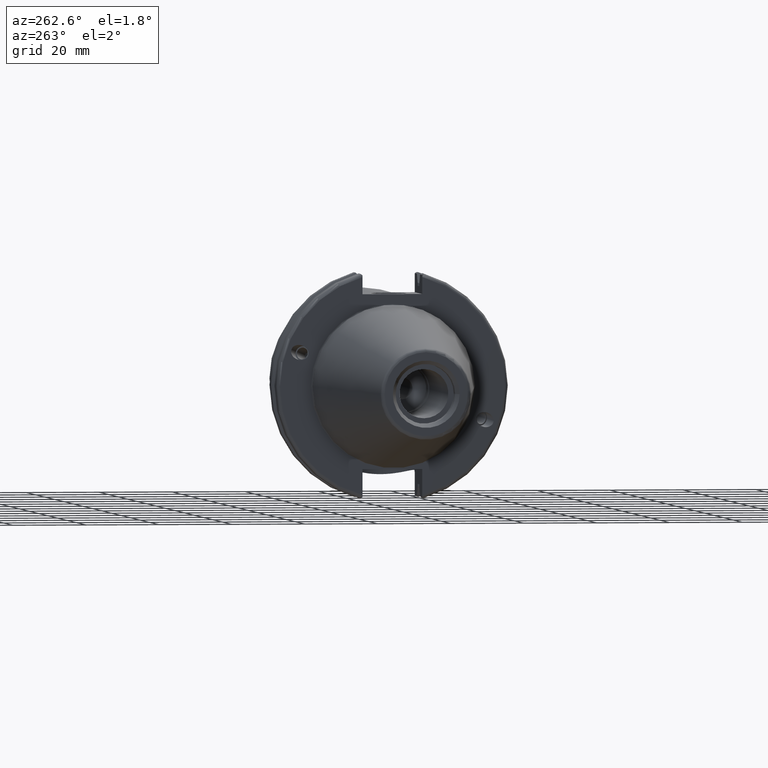
[diagram: clean part render]
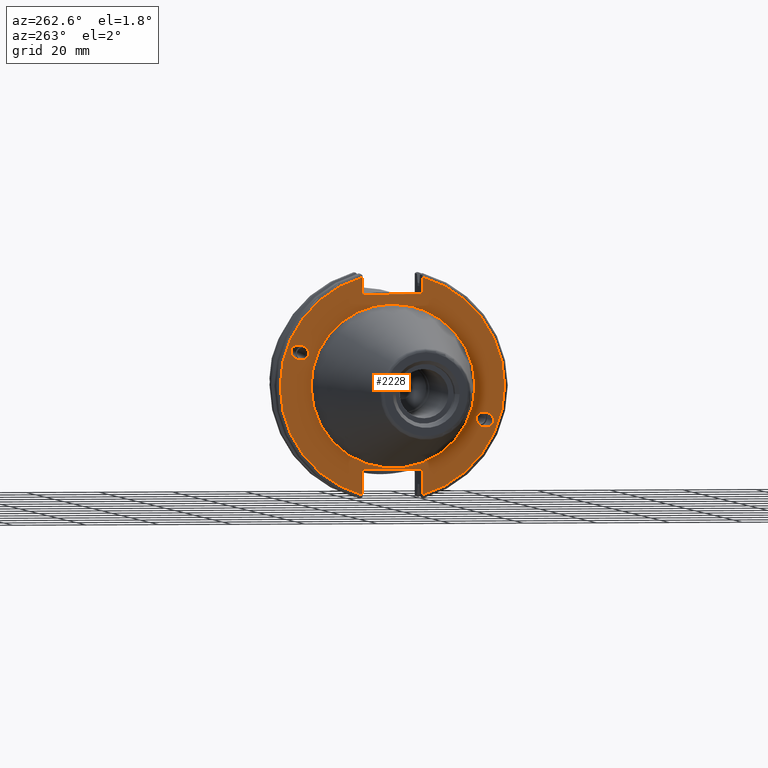
[diagram: same view with one face highlighted and labeled with its STEP entity id]
A machine part, auxiliary view. The second image highlights one B-rep face of the part: STEP entity #2228.
In plain terms, the highlighted planar face has unit normal (-1, 0, 0).
Its self-contained STEP definition (entity closure, byte-faithful):
#44=PLANE('',#2531);
#97=ELLIPSE('',#2475,2.44154917752292,2.00000000000001);
#101=ELLIPSE('',#2518,2.44154917752292,2.00000000000001);
#134=FACE_BOUND('',#373,.T.);
#135=FACE_BOUND('',#374,.T.);
#136=FACE_BOUND('',#375,.T.);
#251=FACE_OUTER_BOUND('',#372,.T.);
#372=EDGE_LOOP('',(#1876,#1877,#1878,#1879,#1880,#1881,#1882,#1883));
#373=EDGE_LOOP('',(#1884));
#374=EDGE_LOOP('',(#1885));
#375=EDGE_LOOP('',(#1886,#1887));
#476=LINE('',#4129,#572);
#477=LINE('',#4131,#573);
#478=LINE('',#4133,#574);
#479=LINE('',#4137,#575);
#480=LINE('',#4139,#576);
#481=LINE('',#4140,#577);
#572=VECTOR('',#3153,10.);
#573=VECTOR('',#3154,10.);
#574=VECTOR('',#3155,10.);
#575=VECTOR('',#3158,10.);
#576=VECTOR('',#3159,10.);
#577=VECTOR('',#3160,10.);
#760=CIRCLE('',#2527,22.3);
#761=CIRCLE('',#2528,22.3);
#764=CIRCLE('',#2532,30.75);
#765=CIRCLE('',#2533,30.75);
#943=VERTEX_POINT('',#3917);
#983=VERTEX_POINT('',#4099);
#989=VERTEX_POINT('',#4116);
#990=VERTEX_POINT('',#4118);
#992=VERTEX_POINT('',#4125);
#993=VERTEX_POINT('',#4126);
#994=VERTEX_POINT('',#4128);
#995=VERTEX_POINT('',#4130);
#996=VERTEX_POINT('',#4132);
#997=VERTEX_POINT('',#4134);
#998=VERTEX_POINT('',#4136);
#999=VERTEX_POINT('',#4138);
#1243=EDGE_CURVE('',#943,#943,#97,.T.);
#1298=EDGE_CURVE('',#983,#983,#101,.T.);
#1306=EDGE_CURVE('',#989,#990,#760,.T.);
#1307=EDGE_CURVE('',#990,#989,#761,.T.);
#1310=EDGE_CURVE('',#992,#993,#764,.T.);
#1311=EDGE_CURVE('',#992,#994,#476,.T.);
#1312=EDGE_CURVE('',#994,#995,#477,.T.);
#1313=EDGE_CURVE('',#995,#996,#478,.T.);
#1314=EDGE_CURVE('',#997,#996,#765,.T.);
#1315=EDGE_CURVE('',#997,#998,#479,.T.);
#1316=EDGE_CURVE('',#998,#999,#480,.T.);
#1317=EDGE_CURVE('',#999,#993,#481,.T.);
#1876=ORIENTED_EDGE('',*,*,#1310,.F.);
#1877=ORIENTED_EDGE('',*,*,#1311,.T.);
#1878=ORIENTED_EDGE('',*,*,#1312,.T.);
#1879=ORIENTED_EDGE('',*,*,#1313,.T.);
#1880=ORIENTED_EDGE('',*,*,#1314,.F.);
#1881=ORIENTED_EDGE('',*,*,#1315,.T.);
#1882=ORIENTED_EDGE('',*,*,#1316,.T.);
#1883=ORIENTED_EDGE('',*,*,#1317,.T.);
#1884=ORIENTED_EDGE('',*,*,#1243,.T.);
#1885=ORIENTED_EDGE('',*,*,#1298,.T.);
#1886=ORIENTED_EDGE('',*,*,#1307,.F.);
#1887=ORIENTED_EDGE('',*,*,#1306,.F.);
#2228=ADVANCED_FACE('',(#251,#134,#135,#136),#44,.T.);
#2475=AXIS2_PLACEMENT_3D('',#3919,#3019,#3020);
#2518=AXIS2_PLACEMENT_3D('',#4101,#3121,#3122);
#2527=AXIS2_PLACEMENT_3D('',#4119,#3141,#3142);
#2528=AXIS2_PLACEMENT_3D('',#4120,#3143,#3144);
#2531=AXIS2_PLACEMENT_3D('',#4124,#3149,#3150);
#2532=AXIS2_PLACEMENT_3D('',#4127,#3151,#3152);
#2533=AXIS2_PLACEMENT_3D('',#4135,#3156,#3157);
#3019=DIRECTION('center_axis',(1.,0.,0.));
#3020=DIRECTION('ref_axis',(5.68400912649E-17,-0.939692620785909,-0.342020143325667));
#3121=DIRECTION('center_axis',(1.,0.,0.));
#3122=DIRECTION('ref_axis',(5.68400912649E-17,0.939692620785909,0.342020143325667));
#3141=DIRECTION('center_axis',(-1.,0.,0.));
#3142=DIRECTION('ref_axis',(0.,-1.,1.83697019872103E-16));
#3143=DIRECTION('center_axis',(-1.,0.,0.));
#3144=DIRECTION('ref_axis',(0.,-1.,1.83697019872103E-16));
#3149=DIRECTION('center_axis',(-1.,0.,0.));
#3150=DIRECTION('ref_axis',(0.,0.,1.));
#3151=DIRECTION('center_axis',(1.,0.,0.));
#3152=DIRECTION('ref_axis',(0.,-1.,1.60812264967664E-16));
#3153=DIRECTION('',(0.,0.,-1.));
#3154=DIRECTION('',(0.,1.,0.));
#3155=DIRECTION('',(0.,0.,1.));
#3156=DIRECTION('center_axis',(1.,0.,0.));
#3157=DIRECTION('ref_axis',(0.,1.,1.60812264967664E-16));
#3158=DIRECTION('',(0.,0.,1.));
#3159=DIRECTION('',(0.,-1.,0.));
#3160=DIRECTION('',(0.,0.,-1.));
#3917=CARTESIAN_POINT('',(3.175,-23.0773950158153,-8.39948487016));
#3919=CARTESIAN_POINT('Origin',(3.175,-25.3717007612195,-9.23454386979305));
#4099=CARTESIAN_POINT('',(3.175,23.0773950158153,8.39948487016));
#4101=CARTESIAN_POINT('Origin',(3.175,25.3717007612195,9.23454386979306));
#4116=CARTESIAN_POINT('',(3.175,-2.7309623620986E-15,22.3));
#4118=CARTESIAN_POINT('',(3.175,22.3,-6.8274059052465E-15));
#4119=CARTESIAN_POINT('Origin',(3.175,0.,0.));
#4120=CARTESIAN_POINT('Origin',(3.175,0.,0.));
#4124=CARTESIAN_POINT('Origin',(3.175,31.75,0.));
#4125=CARTESIAN_POINT('',(3.175,-8.18999999999999,29.6392712461019));
#4126=CARTESIAN_POINT('',(3.175,-8.19,-29.6392712461019));
#4127=CARTESIAN_POINT('Origin',(3.175,0.,0.));
#4128=CARTESIAN_POINT('',(3.175,-8.19,25.));
#4129=CARTESIAN_POINT('',(3.175,-8.18999999999999,12.5));
#4130=CARTESIAN_POINT('',(3.175,8.19,25.));
#4131=CARTESIAN_POINT('',(3.175,15.875,25.));
#4132=CARTESIAN_POINT('',(3.175,8.19,29.6392712461019));
#4133=CARTESIAN_POINT('',(3.175,8.19,12.5));
#4134=CARTESIAN_POINT('',(3.175,8.18999999999999,-29.6392712461019));
#4135=CARTESIAN_POINT('Origin',(3.175,0.,0.));
#4136=CARTESIAN_POINT('',(3.175,8.19,-22.6));
#4137=CARTESIAN_POINT('',(3.175,8.18999999999999,-11.3));
#4138=CARTESIAN_POINT('',(3.175,-8.19,-22.6));
#4139=CARTESIAN_POINT('',(3.175,15.875,-22.6));
#4140=CARTESIAN_POINT('',(3.175,-8.19,-11.3));